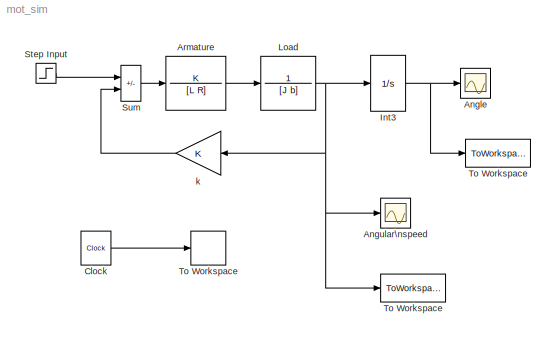
MODEL mot_sim
KIND model
CONFIG AbsTol = 1e-3
CONFIG FixedStep = auto
CONFIG MaxStep = 0.1
CONFIG MinStep = auto
CONFIG RelTol = 1e-3
CONFIG Solver = ode45
CONFIG SolverMode = SingleTasking
CONFIG StartTime = 0.0
CONFIG StopTime = 3
BLOCK [Gain]  k 
  Gain = K
  Multiplication = Element-wise(K.*u)
  SaturateOnIntegerOverflow = on
BLOCK [Scope] Angle
  DataFormat = Array
  Decimation = 1
  Floating = off
  Grid = on
  LimitDataPoints = on
  MaxDataPoints = 5000
  NumInputPorts = 1
  Ports = [1]
  SampleInput = off
  SampleTime = 0
  SaveName = ScopeData
  SaveToWorkspace = off
  TickLabels = on
  TimeRange = auto
  YMax = 0.5
  YMin = 0
  ZoomMode = on
BLOCK [Scope] Angular\nspeed
  DataFormat = Array
  Decimation = 1
  Floating = off
  Grid = on
  LimitDataPoints = on
  MaxDataPoints = 5000
  NumInputPorts = 1
  Ports = [1]
  SampleInput = off
  SampleTime = 0
  SaveName = ScopeData
  SaveToWorkspace = off
  TickLabels = on
  TimeRange = auto
  YMax = 0.2
  YMin = 0
  ZoomMode = on
BLOCK [TransferFcn] Armature
  AbsoluteTolerance = auto
  Denominator = [L R]
  Numerator = K
  Realization = auto
BLOCK [Clock] Clock
  Decimation = 10
  DisplayTime = off
BLOCK [Integrator] Int3
  AbsoluteTolerance = auto
  ExternalReset = none
  InitialCondition = 0
  InitialConditionSource = internal
  LimitOutput = off
  LowerSaturationLimit = -inf
  Ports = [1, 1]
  ShowSaturationPort = off
  ShowStatePort = off
  UpperSaturationLimit = inf
BLOCK [TransferFcn] Load
  AbsoluteTolerance = auto
  Denominator = [J b]
  Numerator = 1
  Realization = auto
BLOCK [Step] Step Input
  After = 1
  Before = 0
  SampleTime = -1
  Time = 0
  VectorParams1D = on
BLOCK [Sum] Sum
  IconShape = rectangular
  Inputs = +-
  Ports = [2, 1]
  SaturateOnIntegerOverflow = on
BLOCK [ToWorkspace] To Workspace
  Decimation = 1
  MaxDataPoints = 1000
  SampleTime = 0
  SaveFormat = Array
  VariableName = omega
BLOCK [ToWorkspace] To Workspace 
  Decimation = 1
  MaxDataPoints = 1000
  SampleTime = 0
  SaveFormat = Array
  VariableName = theta
BLOCK [ToWorkspace] To Workspace  
  Decimation = 1
  MaxDataPoints = 1000
  SampleTime = 0
  SaveFormat = Array
  VariableName = t
LINE  k :1 -> Sum:2
LINE Armature:1 -> Load:1
LINE Clock:1 -> To Workspace  :1
NET Int3:1 -> Angle:1, To Workspace :1
NET Load:1 ->  k :1, Angular\nspeed:1, Int3:1, To Workspace:1
LINE Step Input:1 -> Sum:1
LINE Sum:1 -> Armature:1
note: NET lines group one-source signal fan-out (src -> all destinations, sorted); 1:1 wires keep LINE
